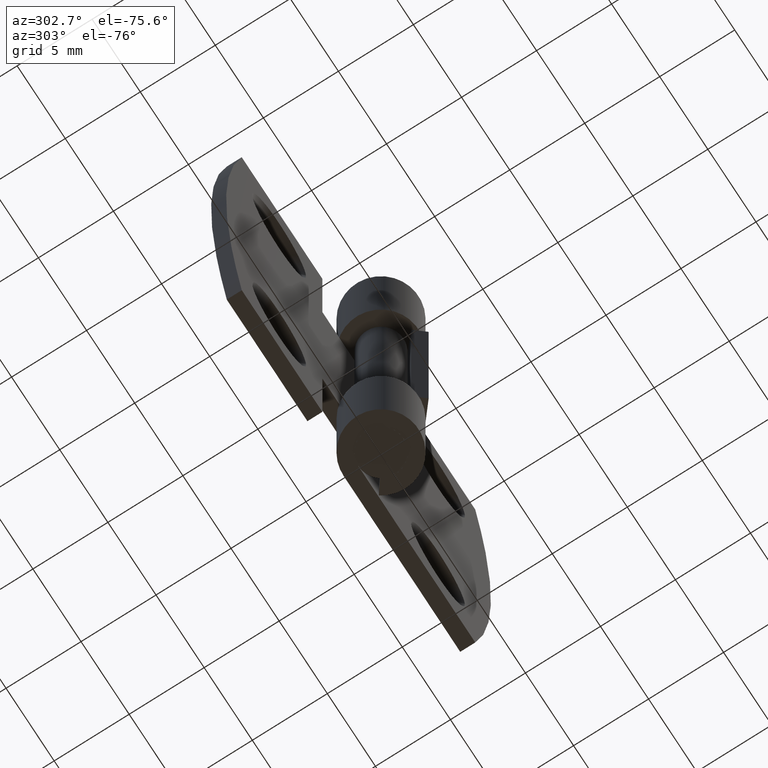
[diagram: clean part render]
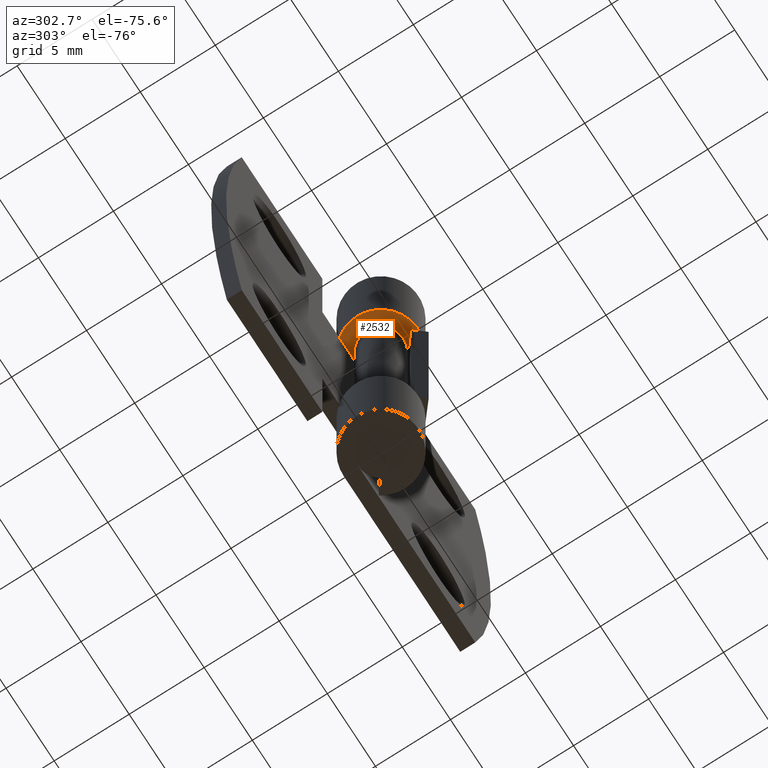
[diagram: same view with one face highlighted and labeled with its STEP entity id]
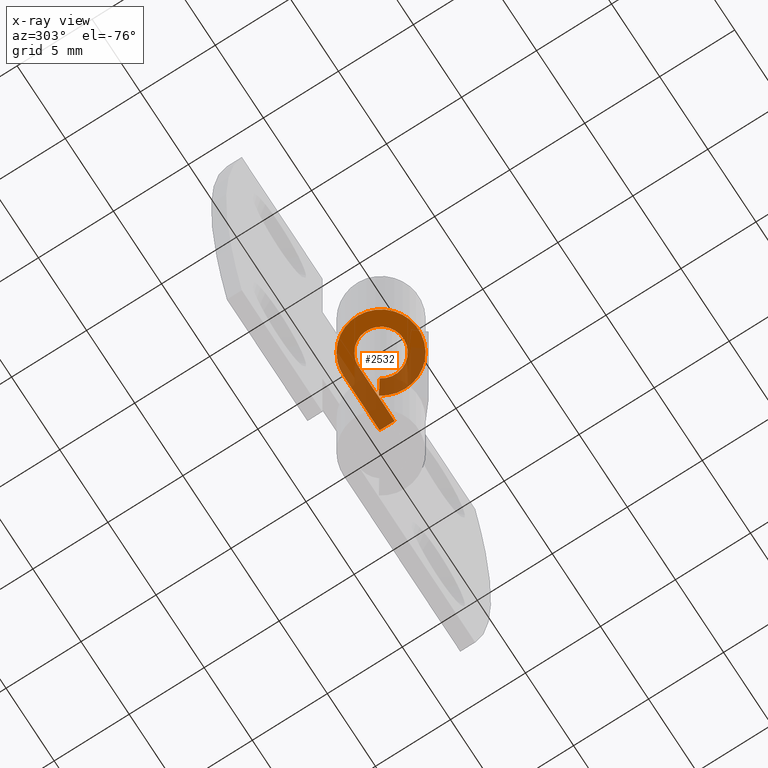
[diagram: x-ray of the same camera — body ghosted, the highlighted face saturated]
A machine part, auxiliary view. The second image highlights one B-rep face of the part: STEP entity #2532.
The next image is the same camera in x-ray: the body ghosted, the highlighted face saturated — about 52% of this face is hidden behind the body in this view.
In plain terms, the highlighted face is a freeform B-spline surface patch.
Its self-contained STEP definition (entity closure, byte-faithful):
#2144=CARTESIAN_POINT('',(1.221924711264978,0.870000000000000,22.500000000000000));
#2145=VERTEX_POINT('',#2144);
#2146=CARTESIAN_POINT('',(2.036541185441630,1.450000000000000,22.500000000000000));
#2147=VERTEX_POINT('',#2146);
#2148=CARTESIAN_POINT('',(1.221924711264978,0.870000000000000,22.500000000000000));
#2149=CARTESIAN_POINT('',(2.036541185441630,1.450000000000000,22.500000000000000));
#2150=QUASI_UNIFORM_CURVE('',1,(#2148,#2149),.UNSPECIFIED.,.F.,.U.);
#2151=EDGE_CURVE('',#2145,#2147,#2150,.T.);
#2197=CARTESIAN_POINT('',(0.0,1.500000000000000,22.500000000000000));
#2198=VERTEX_POINT('',#2197);
#2199=CARTESIAN_POINT('',(1.221924711264978,0.870000000000000,22.500000000000000));
#2200=CARTESIAN_POINT('',(1.906087977416403,-0.090914944195616,22.500000000000007));
#2201=CARTESIAN_POINT('',(1.133572891133023,-0.982350497779850,22.500000000000000));
#2202=CARTESIAN_POINT('',(0.361057804849642,-1.873786051364085,22.500000000000007));
#2203=CARTESIAN_POINT('',(-0.687386354243376,-1.333229162597339,22.500000000000000));
#2204=CARTESIAN_POINT('',(-1.735830513336394,-0.792672273830592,22.500000000000007));
#2205=CARTESIAN_POINT('',(-1.457711175764254,0.353663863084704,22.500000000000000));
#2206=CARTESIAN_POINT('',(-1.179591838192114,1.500000000000000,22.500000000000007));
#2207=CARTESIAN_POINT('',(0.0,1.500000000000000,22.500000000000000));
#2215=(BOUNDED_CURVE()B_SPLINE_CURVE(2,(#2199,#2200,#2201,#2202,#2203,#2204,#2205,#2206,#2207),.UNSPECIFIED.,.F.,.U.)B_SPLINE_CURVE_WITH_KNOTS((3,2,2,2,3),(0.0,0.250000000000000,0.500000000000000,0.750000000000000,1.0),.UNSPECIFIED.)CURVE()GEOMETRIC_REPRESENTATION_ITEM()RATIONAL_B_SPLINE_CURVE((1.0,0.786058492964467,1.0,0.786058492964467,1.0,0.786058492964467,1.0,0.786058492964467,1.0))REPRESENTATION_ITEM(''));
#2216=EDGE_CURVE('',#2145,#2198,#2215,.T.);
#2270=CARTESIAN_POINT('',(0.0,2.499999999999945,22.500000000000000));
#2271=VERTEX_POINT('',#2270);
#2272=CARTESIAN_POINT('',(2.036541185441630,1.450000000000000,22.500000000000000));
#2273=CARTESIAN_POINT('',(3.176813295694007,-0.151524906992693,22.499999999999996));
#2274=CARTESIAN_POINT('',(1.889288151888372,-1.637250829633083,22.500000000000000));
#2275=CARTESIAN_POINT('',(0.601763008082737,-3.122976752273474,22.499999999999996));
#2276=CARTESIAN_POINT('',(-1.145643923738960,-2.222048604328897,22.500000000000000));
#2277=CARTESIAN_POINT('',(-2.893050855560657,-1.321120456384320,22.499999999999996));
#2278=CARTESIAN_POINT('',(-2.429518626273757,0.589439771807839,22.500000000000000));
#2279=CARTESIAN_POINT('',(-1.965986396986857,2.500000000000000,22.499999999999996));
#2280=CARTESIAN_POINT('',(0.0,2.499999999999945,22.500000000000000));
#2288=(BOUNDED_CURVE()B_SPLINE_CURVE(2,(#2272,#2273,#2274,#2275,#2276,#2277,#2278,#2279,#2280),.UNSPECIFIED.,.F.,.U.)B_SPLINE_CURVE_WITH_KNOTS((3,2,2,2,3),(0.0,0.250000000000000,0.500000000000000,0.750000000000000,1.0),.UNSPECIFIED.)CURVE()GEOMETRIC_REPRESENTATION_ITEM()RATIONAL_B_SPLINE_CURVE((1.0,0.786058492964466,1.0,0.786058492964466,1.0,0.786058492964466,1.0,0.786058492964466,1.0))REPRESENTATION_ITEM(''));
#2289=EDGE_CURVE('',#2147,#2271,#2288,.T.);
#2503=CARTESIAN_POINT('',(4.062136663619091,-2.745475678960748,22.500000000000000));
#2504=CARTESIAN_POINT('',(-2.811119328343572,-2.745475678960748,22.500000000000000));
#2505=CARTESIAN_POINT('',(4.062136663619091,2.749546779537665,22.500000000000000));
#2506=CARTESIAN_POINT('',(-2.811119328343572,2.749546779537665,22.500000000000000));
#2507=B_SPLINE_SURFACE_WITH_KNOTS('',1,1,((#2503,#2505),(#2504,#2506)),.UNSPECIFIED.,.F.,.F.,.U.,(2,2),(2,2),(0.0,6.873255991962663),(0.0,5.495022458498413),.UNSPECIFIED.);
#2508=CARTESIAN_POINT('',(3.750000000000000,2.499999999999945,22.500000000000000));
#2509=VERTEX_POINT('',#2508);
#2510=CARTESIAN_POINT('',(3.750000000000000,2.499999999999945,22.500000000000000));
#2511=CARTESIAN_POINT('',(0.0,2.499999999999945,22.500000000000000));
#2512=QUASI_UNIFORM_CURVE('',1,(#2510,#2511),.UNSPECIFIED.,.F.,.U.);
#2513=EDGE_CURVE('',#2509,#2271,#2512,.T.);
#2514=ORIENTED_EDGE('',*,*,#2513,.F.);
#2515=CARTESIAN_POINT('',(3.750000000000000,1.499999999999946,22.500000000000000));
#2516=VERTEX_POINT('',#2515);
#2517=CARTESIAN_POINT('',(3.750000000000000,1.499999999999946,22.500000000000000));
#2518=CARTESIAN_POINT('',(3.750000000000000,2.499999999999945,22.500000000000000));
#2519=QUASI_UNIFORM_CURVE('',1,(#2517,#2518),.UNSPECIFIED.,.F.,.U.);
#2520=EDGE_CURVE('',#2516,#2509,#2519,.T.);
#2521=ORIENTED_EDGE('',*,*,#2520,.F.);
#2522=CARTESIAN_POINT('',(3.750000000000000,1.499999999999946,22.500000000000000));
#2523=CARTESIAN_POINT('',(0.0,1.500000000000000,22.500000000000000));
#2524=QUASI_UNIFORM_CURVE('',1,(#2522,#2523),.UNSPECIFIED.,.F.,.U.);
#2525=EDGE_CURVE('',#2516,#2198,#2524,.T.);
#2526=ORIENTED_EDGE('',*,*,#2525,.T.);
#2527=ORIENTED_EDGE('',*,*,#2216,.F.);
#2528=ORIENTED_EDGE('',*,*,#2151,.T.);
#2529=ORIENTED_EDGE('',*,*,#2289,.T.);
#2530=EDGE_LOOP('',(#2514,#2521,#2526,#2527,#2528,#2529));
#2531=FACE_OUTER_BOUND('',#2530,.T.);
#2532=ADVANCED_FACE('',(#2531),#2507,.T.);